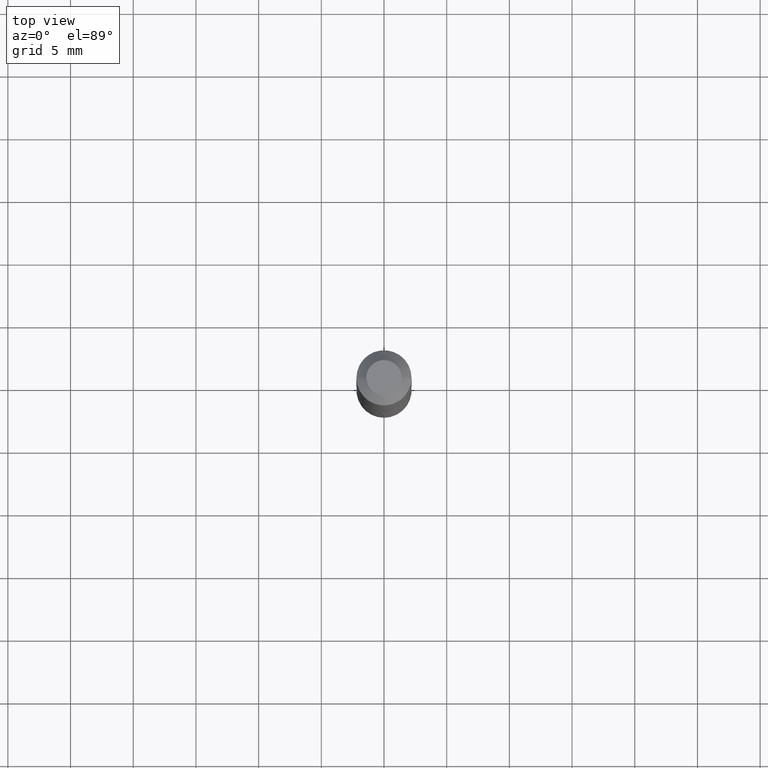
[diagram: clean part render]
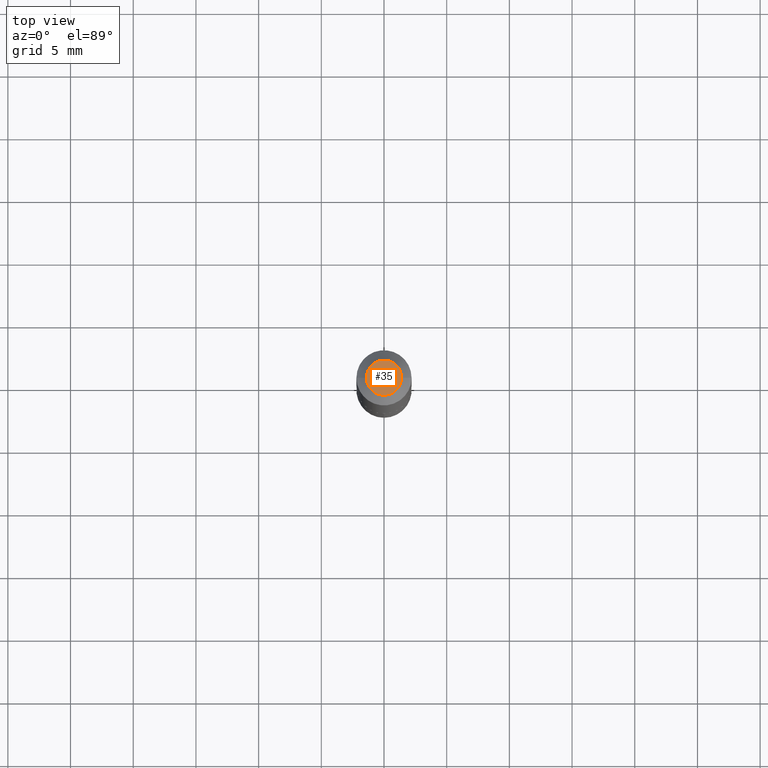
[diagram: same view with one face highlighted and labeled with its STEP entity id]
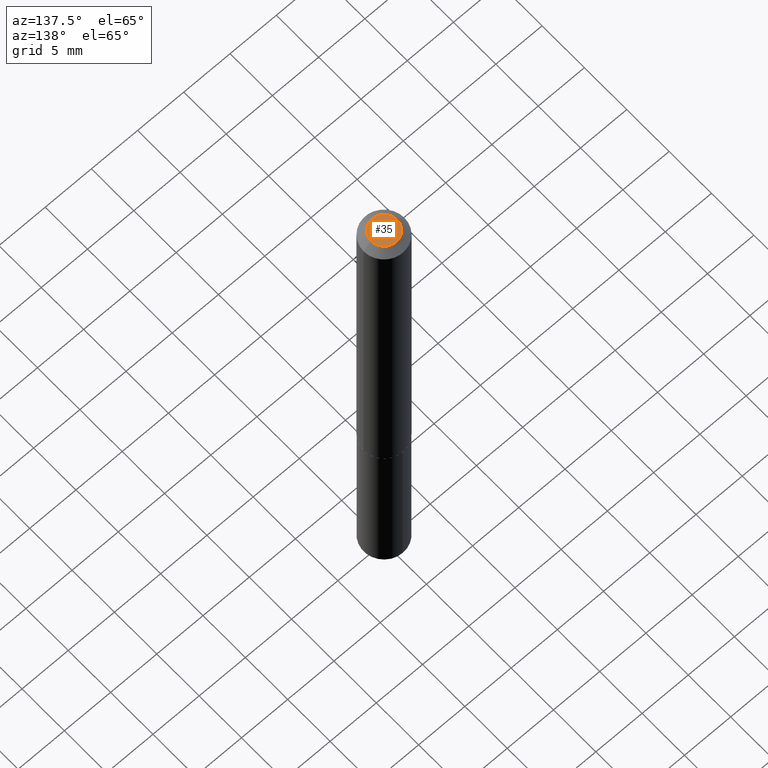
[diagram: same view with one face highlighted and labeled with its STEP entity id]
A machine part, top view. The second image highlights one B-rep face of the part: STEP entity #35.
A second angle (auxiliary view) of the same face is appended — the face is thin or edge-on in the first view.
In plain terms, the highlighted planar face has unit normal (0, -0, -1).
Its self-contained STEP definition (entity closure, byte-faithful):
#20 = VERTEX_POINT ( 'NONE', #184 ) ;
#27 = PLANE ( 'NONE',  #308 ) ;
#35 = ADVANCED_FACE ( 'NONE', ( #152 ), #27, .F. ) ;
#52 = DIRECTION ( 'NONE',  ( -2.445468806185136597E-29, 3.491481338843145583E-15, 1.000000000000000000 ) ) ;
#65 = EDGE_LOOP ( 'NONE', ( #324, #209 ) ) ;
#78 = CARTESIAN_POINT ( 'NONE',  ( -5.839929314523118284E-48, 8.337871319499000362E-34, 2.388061258337310548E-19 ) ) ;
#108 = EDGE_CURVE ( 'NONE', #164, #20, #171, .T. ) ;
#109 = CARTESIAN_POINT ( 'NONE',  ( -5.839929314523118284E-48, 8.337871319499000362E-34, 2.388061258337310548E-19 ) ) ;
#152 = FACE_OUTER_BOUND ( 'NONE', #65, .T. ) ;
#164 = VERTEX_POINT ( 'NONE', #292 ) ;
#171 = CIRCLE ( 'NONE', #389, 0.05534999999999998949 ) ;
#184 = CARTESIAN_POINT ( 'NONE',  ( -0.05534999999999998949, 4.410613801293581608E-16, 2.388061258308374895E-19 ) ) ;
#204 = DIRECTION ( 'NONE',  ( 1.000000000000000000, -6.982962677686266711E-15, 4.876151470398592516E-29 ) ) ;
#209 = ORIENTED_EDGE ( 'NONE', *, *, #108, .T. ) ;
#235 = EDGE_CURVE ( 'NONE', #20, #164, #285, .T. ) ;
#260 = DIRECTION ( 'NONE',  ( -2.445468806185136597E-29, 3.491481338843145583E-15, 1.000000000000000000 ) ) ;
#273 = CARTESIAN_POINT ( 'NONE',  ( -2.919964657261559142E-48, 4.168935659749500181E-34, 1.194030629168655274E-19 ) ) ;
#285 = CIRCLE ( 'NONE', #311, 0.05534999999999998949 ) ;
#292 = CARTESIAN_POINT ( 'NONE',  ( 0.05534999999999998949, -5.414782413112588911E-16, 2.388061258369751875E-19 ) ) ;
#301 = DIRECTION ( 'NONE',  ( 2.438088387897960049E-29, -3.491481338843145188E-15, -1.000000000000000000 ) ) ;
#308 = AXIS2_PLACEMENT_3D ( 'NONE', #273, #301, #388 ) ;
#311 = AXIS2_PLACEMENT_3D ( 'NONE', #78, #260, #337 ) ;
#324 = ORIENTED_EDGE ( 'NONE', *, *, #235, .T. ) ;
#337 = DIRECTION ( 'NONE',  ( 1.000000000000000000, -6.982962677686266711E-15, 4.876151470398592516E-29 ) ) ;
#388 = DIRECTION ( 'NONE',  ( -1.000000000000000000, 6.982962677686265922E-15, -4.876176775795935793E-29 ) ) ;
#389 = AXIS2_PLACEMENT_3D ( 'NONE', #109, #52, #204 ) ;